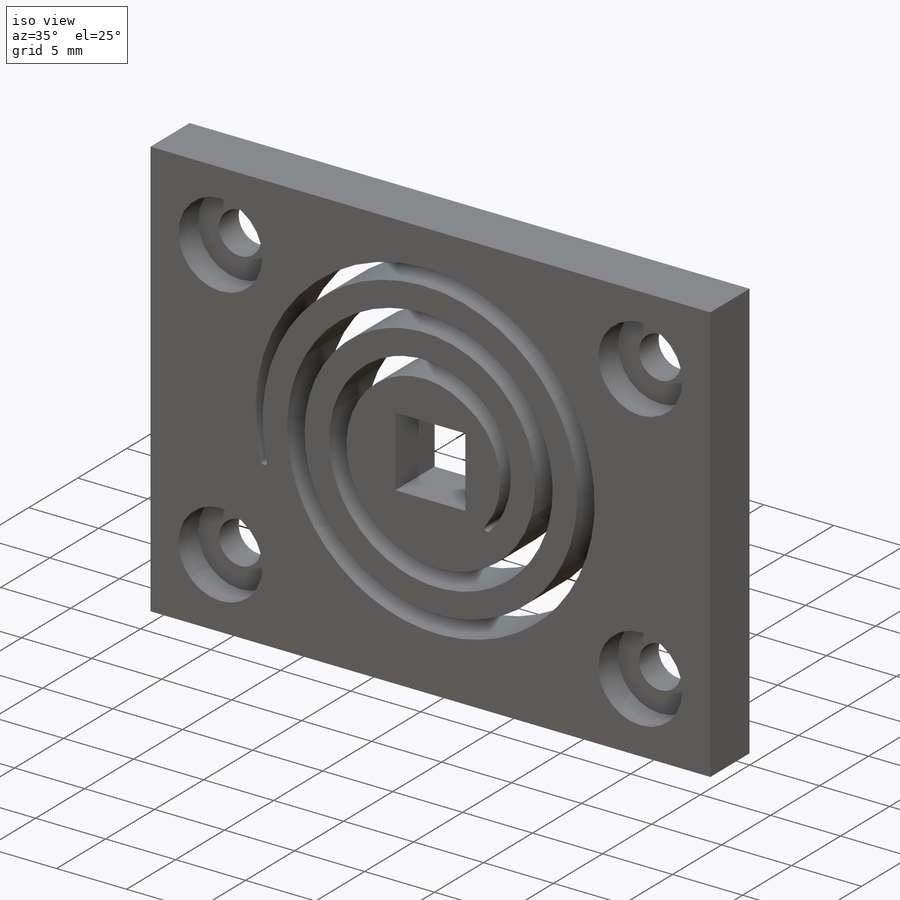
[diagram: iso view]
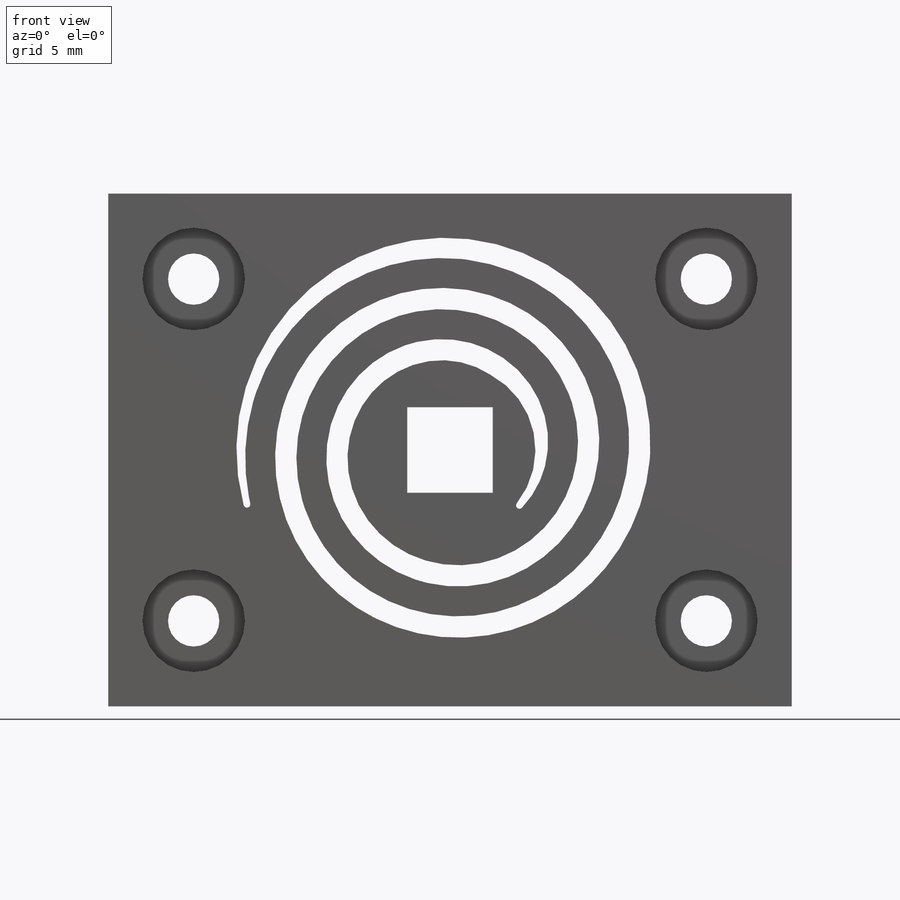
[diagram: front view]
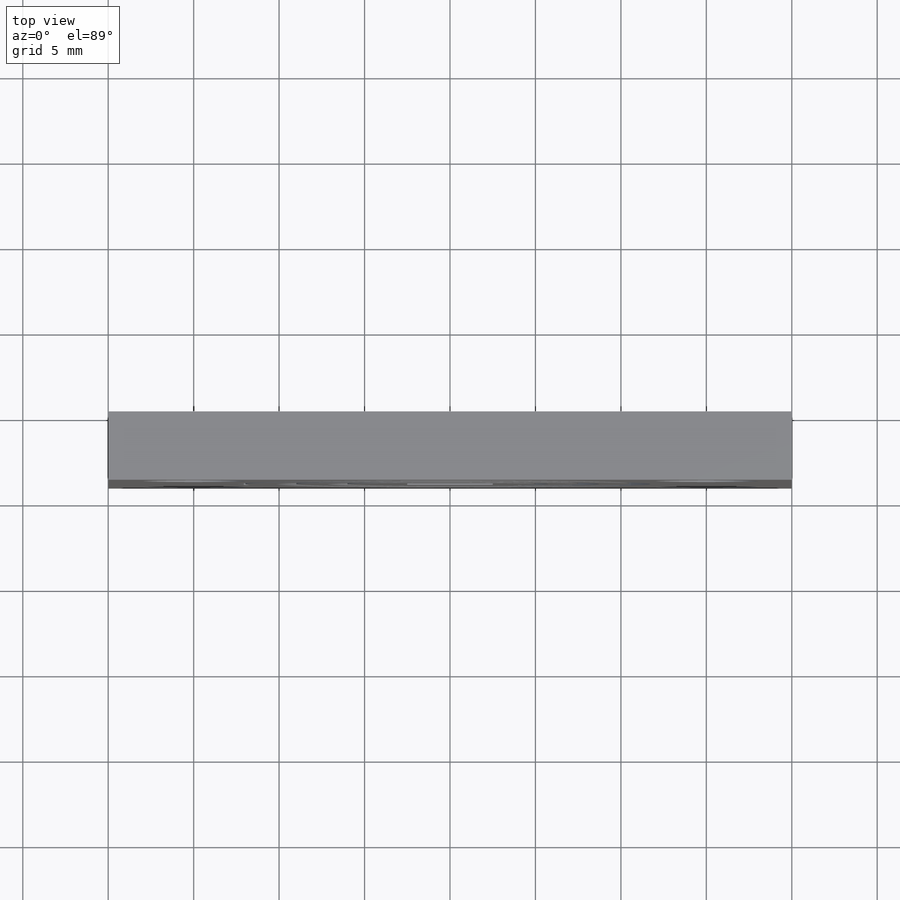
[diagram: top view]
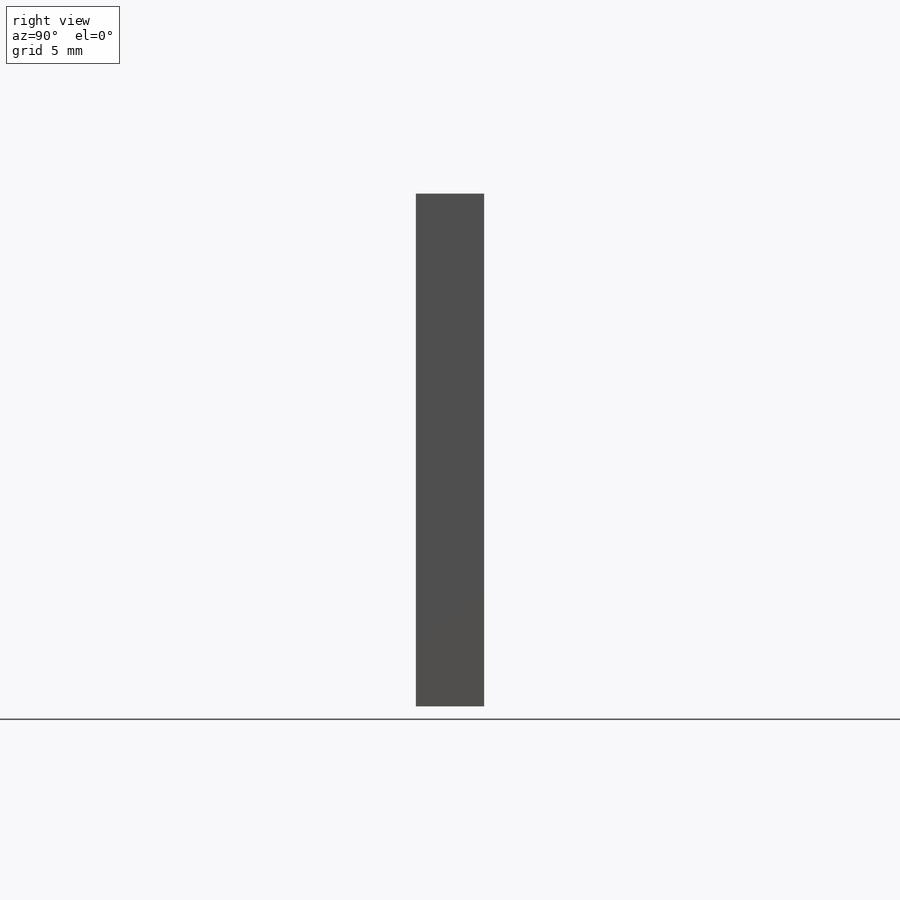
[diagram: right view]
SOLIDWORKS PART (.sldprt)
format: sldprt  version: not decoded by parser v0  size: 367,616 bytes
history: native  units: mm
features: sketch x8, plane x4, cut_extrude x4, fillet x2, material x1, extrude x1, helix x1, sweep x1 (+9 scaffold rows collapsed)
feature tree (31):
  scaffold x9  (default folders/planes/origin — collapsed)
  material  "Material <nicht festgelegt>"
  plane  "Ebene vorne"
  plane  "Ebene oben"
  plane  "Ebene rechts"
  sketch  "Skizze1"  dims[D1=30.0mm D2=40.0mm]
  extrude  "Aufsatz-Linear austragen1"  Depth=4mm
  sketch  "Skizze5"  dims[D1=25.0mm D2=10.0mm D4=2.0mm D5=2.0mm D6=2.0mm D3=4.0]
  cut_extrude  "Schnitt-Linear austragen3"  [1 undecoded]
  sketch  "Skizze6"
  sketch  "Skizze8"  dims[D3=3.0mm D4=6.0mm D1=15.0mm D2=10.0mm]
  cut_extrude  "Schnitt-Linear austragen6"  Depth=2mm
  cut_extrude  "Schnitt-Linear austragen7"  [1 undecoded]
  sketch  "Skizze8<3>"
  sketch  "Skizze13"
  helix  "Spirale/Helix2"  Pitch=3mm
  plane  "Ebene2"
  sketch  "Skizze16"  dims[D1=1.8mm D2=4.0mm D3=~23.510343mm]
  sweep  "Austragung3"
  fillet  "Verrundung2"  Radius=0.2mm
  sketch  "Skizze17"  dims[c1.D1=~4.487486mm c2.D1=90.0deg c3.D1=2.5mm c3.D2=2.5mm c3.D3=2.5mm c3.D4=5.0mm]
  cut_extrude  "Schnitt-Linear austragen8"  [1 undecoded]
  fillet  "Verrundung3"  Radius=12mm
decode coverage: 10 of 17 modeling features carry decoded parameters
note: ~ marks probable driven/reference dimensions
note: 3 parameter values undecoded
summary: no parameter record found for 3 features
note: suppression state not decoded; provenance and decode notes live in map.json
